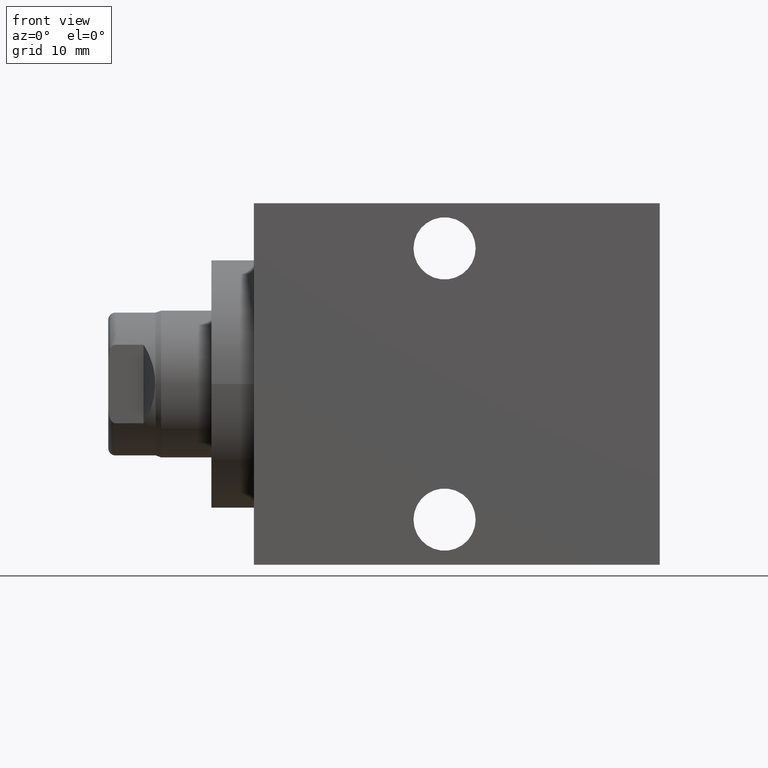
[diagram: clean part render]
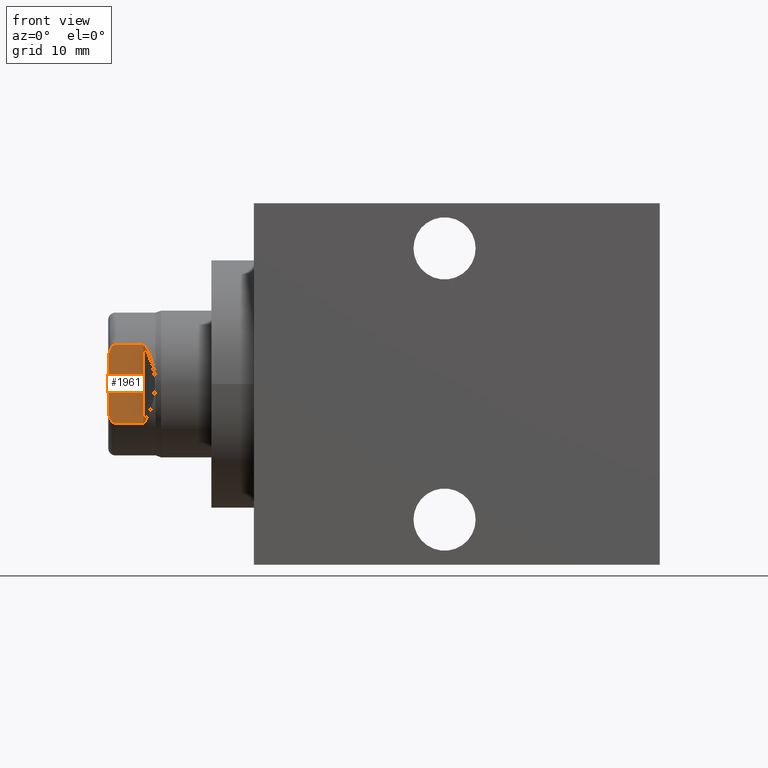
[diagram: same view with one face highlighted and labeled with its STEP entity id]
A machine part, front view. The second image highlights one B-rep face of the part: STEP entity #1961.
In plain terms, the highlighted planar face has unit normal (0, 1, 0).
Its self-contained STEP definition (entity closure, byte-faithful):
#177=DIRECTION('',(0.E0,0.E0,1.E0));
#178=VECTOR('',#177,6.647816247414E0);
#179=CARTESIAN_POINT('',(-2.0447E1,-8.382E0,-3.323908156025E0));
#180=LINE('',#179,#178);
#268=CARTESIAN_POINT('',(-2.0447E1,-8.382E0,3.323908091389E0));
#269=CARTESIAN_POINT('',(-2.0447E1,-8.382E0,3.408393673001E0));
#270=CARTESIAN_POINT('',(-2.044413241443E1,-8.382E0,3.577879806016E0));
#271=CARTESIAN_POINT('',(-2.042936421885E1,-8.382E0,3.832390694262E0));
#272=CARTESIAN_POINT('',(-2.040131191426E1,-8.382E0,4.090984558970E0));
#273=CARTESIAN_POINT('',(-2.035598879586E1,-8.382E0,4.353774240563E0));
#274=CARTESIAN_POINT('',(-2.028864903680E1,-8.382E0,4.616635442906E0));
#275=CARTESIAN_POINT('',(-2.019409032931E1,-8.382E0,4.873125456861E0));
#276=CARTESIAN_POINT('',(-2.006221835087E1,-8.382E0,5.119585679481E0));
#277=CARTESIAN_POINT('',(-1.988399907334E1,-8.382E0,5.335819746068E0));
#278=CARTESIAN_POINT('',(-1.966257562114E1,-8.382E0,5.481960806581E0));
#279=CARTESIAN_POINT('',(-1.951031139187E1,-8.382E0,5.513906509907E0));
#280=CARTESIAN_POINT('',(-1.9431E1,-8.382E0,5.513906509907E0));
#326=CARTESIAN_POINT('',(-1.9431E1,-8.382E0,-5.513906509907E0));
#327=CARTESIAN_POINT('',(-1.951075379699E1,-8.382E0,-5.513906509907E0));
#328=CARTESIAN_POINT('',(-1.966358004385E1,-8.382E0,-5.481575852673E0));
#329=CARTESIAN_POINT('',(-1.988466130131E1,-8.382E0,-5.335099324623E0));
#330=CARTESIAN_POINT('',(-2.006204504255E1,-8.382E0,-5.119680363898E0));
#331=CARTESIAN_POINT('',(-2.019335681787E1,-8.382E0,-4.874607738162E0));
#332=CARTESIAN_POINT('',(-2.028762308372E1,-8.382E0,-4.619786688399E0));
#333=CARTESIAN_POINT('',(-2.035500381817E1,-8.382E0,-4.358308797112E0));
#334=CARTESIAN_POINT('',(-2.040060942270E1,-8.382E0,-4.096062193126E0));
#335=CARTESIAN_POINT('',(-2.042903347488E1,-8.382E0,-3.836736196682E0));
#336=CARTESIAN_POINT('',(-2.044407771421E1,-8.382E0,-3.580229556329E0));
#337=CARTESIAN_POINT('',(-2.0447E1,-8.382E0,-3.409242600244E0));
#338=CARTESIAN_POINT('',(-2.0447E1,-8.382E0,-3.323908156025E0));
#384=DIRECTION('',(1.E0,0.E0,0.E0));
#385=VECTOR('',#384,3.937E0);
#386=CARTESIAN_POINT('',(-1.9431E1,-8.382E0,5.513906509907E0));
#387=LINE('',#386,#385);
#391=DIRECTION('',(1.E0,0.E0,0.E0));
#392=VECTOR('',#391,3.937E0);
#393=CARTESIAN_POINT('',(-1.9431E1,-8.382E0,-5.513906509907E0));
#394=LINE('',#393,#392);
#409=DIRECTION('',(0.E0,0.E0,1.E0));
#410=VECTOR('',#409,1.102781301981E1);
#411=CARTESIAN_POINT('',(-1.5494E1,-8.382E0,-5.513906509907E0));
#412=LINE('',#411,#410);
#1588=CARTESIAN_POINT('',(-2.0447E1,-8.382E0,-3.323908156025E0));
#1589=CARTESIAN_POINT('',(-2.0447E1,-8.382E0,3.323908091389E0));
#1590=VERTEX_POINT('',#1588);
#1591=VERTEX_POINT('',#1589);
#1592=CARTESIAN_POINT('',(-1.9431E1,-8.382E0,5.513906509907E0));
#1593=CARTESIAN_POINT('',(-1.5494E1,-8.382E0,5.513906509907E0));
#1594=VERTEX_POINT('',#1592);
#1595=VERTEX_POINT('',#1593);
#1596=CARTESIAN_POINT('',(-1.9431E1,-8.382E0,-5.513906509907E0));
#1597=CARTESIAN_POINT('',(-1.5494E1,-8.382E0,-5.513906509907E0));
#1598=VERTEX_POINT('',#1596);
#1599=VERTEX_POINT('',#1597);
#1947=CARTESIAN_POINT('',(-2.0447E1,-8.382E0,-3.048E1));
#1948=DIRECTION('',(0.E0,1.E0,0.E0));
#1949=DIRECTION('',(1.E0,0.E0,0.E0));
#1950=AXIS2_PLACEMENT_3D('',#1947,#1948,#1949);
#1951=PLANE('',#1950);
#1952=ORIENTED_EDGE('',*,*,#1726,.T.);
#1953=ORIENTED_EDGE('',*,*,#1816,.T.);
#1954=ORIENTED_EDGE('',*,*,#1920,.T.);
#1956=ORIENTED_EDGE('',*,*,#1955,.F.);
#1957=ORIENTED_EDGE('',*,*,#1928,.F.);
#1958=ORIENTED_EDGE('',*,*,#1844,.T.);
#1959=EDGE_LOOP('',(#1952,#1953,#1954,#1956,#1957,#1958));
#1960=FACE_OUTER_BOUND('',#1959,.F.);
#1961=ADVANCED_FACE('',(#1960),#1951,.F.);
#281=B_SPLINE_CURVE_WITH_KNOTS('',3,(#268,#269,#270,#271,#272,#273,#274,#275,
#276,#277,#278,#279,#280),.UNSPECIFIED.,.F.,.F.,(4,1,1,1,1,1,1,1,1,1,4),(0.E0,
1.E-1,2.E-1,3.E-1,4.E-1,5.E-1,6.E-1,7.E-1,8.E-1,9.E-1,1.E0),.UNSPECIFIED.);
#339=B_SPLINE_CURVE_WITH_KNOTS('',3,(#326,#327,#328,#329,#330,#331,#332,#333,
#334,#335,#336,#337,#338),.UNSPECIFIED.,.F.,.F.,(4,1,1,1,1,1,1,1,1,1,4),(0.E0,
1.E-1,2.E-1,3.E-1,4.E-1,5.E-1,6.E-1,7.E-1,8.E-1,9.E-1,1.E0),.UNSPECIFIED.);
#1726=EDGE_CURVE('',#1590,#1591,#180,.T.);
#1816=EDGE_CURVE('',#1591,#1594,#281,.T.);
#1844=EDGE_CURVE('',#1598,#1590,#339,.T.);
#1920=EDGE_CURVE('',#1594,#1595,#387,.T.);
#1928=EDGE_CURVE('',#1598,#1599,#394,.T.);
#1955=EDGE_CURVE('',#1599,#1595,#412,.T.);